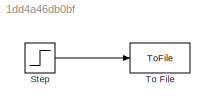
MODEL slx_1dd4a46db0bf
KIND model
CONFIG AbsTol = auto
CONFIG FixedStep = auto
CONFIG MaxStep = auto
CONFIG MinStep = auto
CONFIG RelTol = 1e-3
CONFIG SampleTimeConstraint = Specified
CONFIG Solver = FixedStepDiscrete
CONFIG SolverMode = Auto
CONFIG SolverName = FixedStepDiscrete
CONFIG StartTime = 0.0
CONFIG StopTime = 50
BLOCK [Step] Step
  Time = 0
BLOCK [ToFile] To File
  Filename = test
  Ports = [1]
LINE Step:1 -> To File:1
